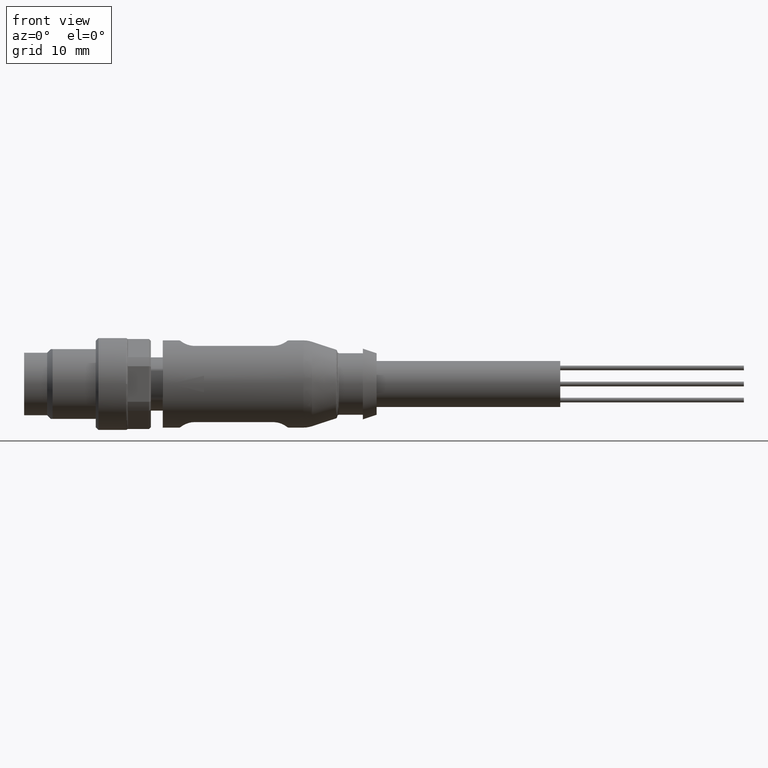
[diagram: clean part render]
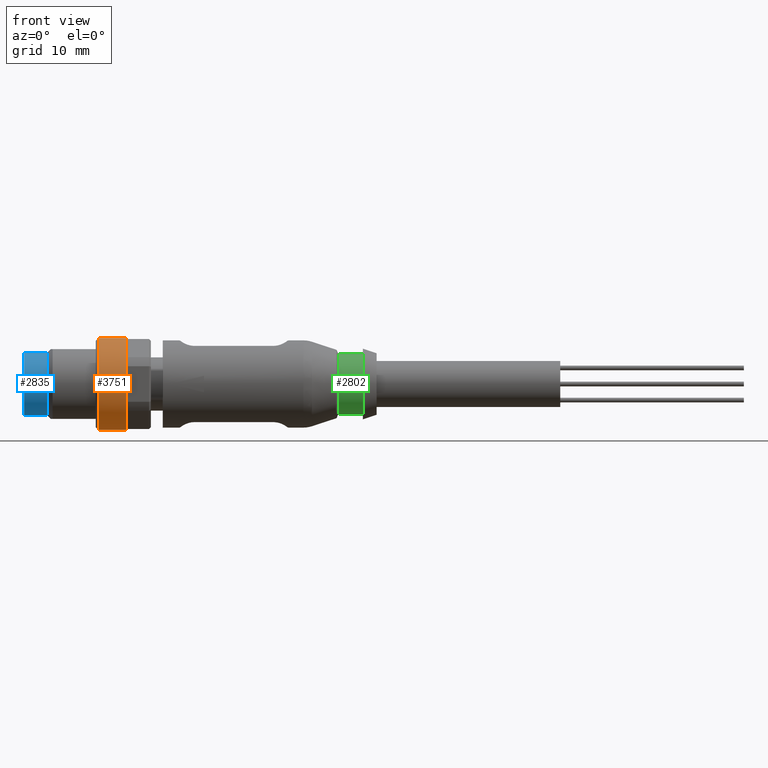
[diagram: same view with three faces highlighted in distinct colors, each labeled with its STEP entity id]
A machine part, front view with three faces highlighted in distinct colors.
Their STEP definitions:

[orange] entity #3751 — the highlighted cylindrical surface (partial cylindrical patch) has radius 5 mm, axis along (-1, 0, 0).
#155 = LINE ( 'NONE', #3574, #2706 ) ;
#286 = AXIS2_PLACEMENT_3D ( 'NONE', #2477, #474, #2804 ) ;
#296 = CARTESIAN_POINT ( 'NONE',  ( -17.05000000000000100, 8.879616000000001400E-016, 0.0000000000000000000 ) ) ;
#400 = CARTESIAN_POINT ( 'NONE',  ( -18.64999999999999900, 8.879616000000001400E-016, -4.999999999577175600 ) ) ;
#404 = VERTEX_POINT ( 'NONE', #3238 ) ;
#474 = DIRECTION ( 'NONE',  ( 1.000000000000000000, -0.0000000000000000000, -0.0000000000000000000 ) ) ;
#569 = DIRECTION ( 'NONE',  ( -1.000000000000000000, 0.0000000000000000000, 0.0000000000000000000 ) ) ;
#575 = CARTESIAN_POINT ( 'NONE',  ( -18.64999999999999900, 1.500284999521895500E-015, 4.999999999577175600 ) ) ;
#590 = CIRCLE ( 'NONE', #1803, 4.999999999999999100 ) ;
#807 = ORIENTED_EDGE ( 'NONE', *, *, #4150, .T. ) ;
#885 = DIRECTION ( 'NONE',  ( 1.000000000000000000, -0.0000000000000000000, -0.0000000000000000000 ) ) ;
#954 = VERTEX_POINT ( 'NONE', #2484 ) ;
#1006 = ORIENTED_EDGE ( 'NONE', *, *, #1381, .T. ) ;
#1037 = AXIS2_PLACEMENT_3D ( 'NONE', #296, #3293, #2298 ) ;
#1256 = DIRECTION ( 'NONE',  ( -1.000000000000000000, 0.0000000000000000000, 0.0000000000000000000 ) ) ;
#1322 = CIRCLE ( 'NONE', #3582, 5.000000000000000000 ) ;
#1355 = ORIENTED_EDGE ( 'NONE', *, *, #4008, .F. ) ;
#1381 = EDGE_CURVE ( 'NONE', #3661, #1816, #1322, .T. ) ;
#1532 = FACE_OUTER_BOUND ( 'NONE', #4113, .T. ) ;
#1763 = ORIENTED_EDGE ( 'NONE', *, *, #2436, .F. ) ;
#1803 = AXIS2_PLACEMENT_3D ( 'NONE', #3891, #1906, #4229 ) ;
#1816 = VERTEX_POINT ( 'NONE', #400 ) ;
#1906 = DIRECTION ( 'NONE',  ( 1.000000000000000000, -0.0000000000000000000, -0.0000000000000000000 ) ) ;
#2298 = DIRECTION ( 'NONE',  ( 0.0000000000000000000, 0.0000000000000000000, 1.000000000000000000 ) ) ;
#2436 = EDGE_CURVE ( 'NONE', #954, #1816, #155, .T. ) ;
#2477 = CARTESIAN_POINT ( 'NONE',  ( -15.64999999999999700, 8.879616000000001400E-016, 0.0000000000000000000 ) ) ;
#2484 = CARTESIAN_POINT ( 'NONE',  ( -15.64999999999999700, 1.500284999573676800E-015, -4.999999999999999100 ) ) ;
#2526 = VECTOR ( 'NONE', #569, 1000.000000000000000 ) ;
#2706 = VECTOR ( 'NONE', #1256, 1000.000000000000000 ) ;
#2804 = DIRECTION ( 'NONE',  ( 0.0000000000000000000, 1.000000000000000000, 0.0000000000000000000 ) ) ;
#2865 = CARTESIAN_POINT ( 'NONE',  ( -18.64999999999999900, 8.879616000000001400E-016, 0.0000000000000000000 ) ) ;
#2902 = CARTESIAN_POINT ( 'NONE',  ( -17.05000000000000100, 8.879616000000001400E-016, 5.000000000000000000 ) ) ;
#3202 = DIRECTION ( 'NONE',  ( 0.0000000000000000000, 0.0000000000000000000, 1.000000000000000000 ) ) ;
#3238 = CARTESIAN_POINT ( 'NONE',  ( -15.64999999999999700, -4.999999999999998200, -6.123233995736765300E-016 ) ) ;
#3293 = DIRECTION ( 'NONE',  ( -1.000000000000000000, 0.0000000000000000000, 0.0000000000000000000 ) ) ;
#3574 = CARTESIAN_POINT ( 'NONE',  ( -17.05000000000000100, 1.500284999573676800E-015, -5.000000000000000000 ) ) ;
#3582 = AXIS2_PLACEMENT_3D ( 'NONE', #2865, #885, #3202 ) ;
#3588 = EDGE_CURVE ( 'NONE', #404, #954, #590, .T. ) ;
#3661 = VERTEX_POINT ( 'NONE', #575 ) ;
#3677 = CARTESIAN_POINT ( 'NONE',  ( -15.64999999999999700, 8.879616000000001400E-016, 4.999999999999999100 ) ) ;
#3718 = CIRCLE ( 'NONE', #286, 4.999999999999999100 ) ;
#3751 = ADVANCED_FACE ( 'NONE', ( #1532 ), #4076, .T. ) ;
#3854 = VERTEX_POINT ( 'NONE', #3677 ) ;
#3891 = CARTESIAN_POINT ( 'NONE',  ( -15.64999999999999700, 8.879616000000001400E-016, 0.0000000000000000000 ) ) ;
#3971 = ORIENTED_EDGE ( 'NONE', *, *, #3588, .F. ) ;
#4008 = EDGE_CURVE ( 'NONE', #3854, #404, #3718, .T. ) ;
#4076 = CYLINDRICAL_SURFACE ( 'NONE', #1037, 5.000000000000000000 ) ;
#4082 = LINE ( 'NONE', #2902, #2526 ) ;
#4113 = EDGE_LOOP ( 'NONE', ( #1763, #3971, #1355, #807, #1006 ) ) ;
#4150 = EDGE_CURVE ( 'NONE', #3854, #3661, #4082, .T. ) ;
#4229 = DIRECTION ( 'NONE',  ( 0.0000000000000000000, 1.000000000000000000, 0.0000000000000000000 ) ) ;

[blue] entity #2835 — the highlighted cylindrical surface (edge-blend (fillet) strip) has radius 3.4 mm, axis along (-1, 0, 0).
#114 = FACE_OUTER_BOUND ( 'NONE', #2287, .T. ) ;
#115 = CARTESIAN_POINT ( 'NONE',  ( -26.75000000000000000, 1.304341511710100300E-015, -3.399999999999999900 ) ) ;
#145 = VERTEX_POINT ( 'NONE', #115 ) ;
#178 = DIRECTION ( 'NONE',  ( 1.000000000000000000, 0.0000000000000000000, 0.0000000000000000000 ) ) ;
#227 = AXIS2_PLACEMENT_3D ( 'NONE', #2190, #178, #2517 ) ;
#278 = VECTOR ( 'NONE', #1226, 1000.000000000000000 ) ;
#344 = EDGE_CURVE ( 'NONE', #3056, #145, #2272, .T. ) ;
#356 = EDGE_CURVE ( 'NONE', #1186, #145, #3719, .T. ) ;
#459 = DIRECTION ( 'NONE',  ( -1.000000000000000000, 0.0000000000000000000, 0.0000000000000000000 ) ) ;
#641 = CARTESIAN_POINT ( 'NONE',  ( -26.75000000000000000, 8.879616000000001400E-016, 3.399999999999999900 ) ) ;
#910 = CARTESIAN_POINT ( 'NONE',  ( -26.75000000000000000, 8.879616000000001400E-016, 0.0000000000000000000 ) ) ;
#1055 = VERTEX_POINT ( 'NONE', #1586 ) ;
#1127 = DIRECTION ( 'NONE',  ( 0.0000000000000000000, 0.0000000000000000000, 1.000000000000000000 ) ) ;
#1186 = VERTEX_POINT ( 'NONE', #641 ) ;
#1226 = DIRECTION ( 'NONE',  ( -1.000000000000000000, 0.0000000000000000000, 0.0000000000000000000 ) ) ;
#1241 = DIRECTION ( 'NONE',  ( 0.0000000000000000000, 0.0000000000000000000, 1.000000000000000000 ) ) ;
#1586 = CARTESIAN_POINT ( 'NONE',  ( -24.25000000027921500, 8.879616000000001400E-016, 3.400000000283398500 ) ) ;
#1591 = CIRCLE ( 'NONE', #227, 3.400000000283398500 ) ;
#1615 = EDGE_CURVE ( 'NONE', #1055, #1186, #2155, .T. ) ;
#1866 = ORIENTED_EDGE ( 'NONE', *, *, #344, .F. ) ;
#1904 = CARTESIAN_POINT ( 'NONE',  ( -25.50000000000000400, 1.304341511710100300E-015, -3.399999999999999900 ) ) ;
#1998 = ORIENTED_EDGE ( 'NONE', *, *, #1615, .T. ) ;
#2155 = LINE ( 'NONE', #3340, #3818 ) ;
#2190 = CARTESIAN_POINT ( 'NONE',  ( -24.25000000027921500, 8.879616000000001400E-016, 0.0000000000000000000 ) ) ;
#2272 = LINE ( 'NONE', #1904, #278 ) ;
#2287 = EDGE_LOOP ( 'NONE', ( #1866, #2814, #1998, #3996 ) ) ;
#2465 = CYLINDRICAL_SURFACE ( 'NONE', #2699, 3.399999999999999900 ) ;
#2517 = DIRECTION ( 'NONE',  ( 0.0000000000000000000, 0.0000000000000000000, 1.000000000000000000 ) ) ;
#2699 = AXIS2_PLACEMENT_3D ( 'NONE', #2794, #459, #1127 ) ;
#2794 = CARTESIAN_POINT ( 'NONE',  ( -25.50000000000000400, 8.879616000000001400E-016, 0.0000000000000000000 ) ) ;
#2814 = ORIENTED_EDGE ( 'NONE', *, *, #3492, .F. ) ;
#2835 = ADVANCED_FACE ( 'NONE', ( #114 ), #2465, .T. ) ;
#3056 = VERTEX_POINT ( 'NONE', #3404 ) ;
#3224 = DIRECTION ( 'NONE',  ( 1.000000000000000000, -0.0000000000000000000, -0.0000000000000000000 ) ) ;
#3340 = CARTESIAN_POINT ( 'NONE',  ( -25.50000000000000400, 8.879616000000001400E-016, 3.399999999999999900 ) ) ;
#3384 = AXIS2_PLACEMENT_3D ( 'NONE', #910, #3224, #1241 ) ;
#3404 = CARTESIAN_POINT ( 'NONE',  ( -24.25000000027921500, 1.304341511744806800E-015, -3.400000000283399000 ) ) ;
#3492 = EDGE_CURVE ( 'NONE', #1055, #3056, #1591, .T. ) ;
#3683 = DIRECTION ( 'NONE',  ( -1.000000000000000000, 0.0000000000000000000, 0.0000000000000000000 ) ) ;
#3719 = CIRCLE ( 'NONE', #3384, 3.399999999999999900 ) ;
#3818 = VECTOR ( 'NONE', #3683, 1000.000000000000000 ) ;
#3996 = ORIENTED_EDGE ( 'NONE', *, *, #356, .T. ) ;

[green] entity #2802 — the highlighted cylindrical surface (edge-blend (fillet) strip) has radius 3.35 mm, axis along (1, 0, 0).
#191 = AXIS2_PLACEMENT_3D ( 'NONE', #3174, #1192, #3520 ) ;
#201 = VERTEX_POINT ( 'NONE', #3469 ) ;
#311 = ORIENTED_EDGE ( 'NONE', *, *, #3354, .F. ) ;
#678 = VERTEX_POINT ( 'NONE', #3302 ) ;
#800 = CYLINDRICAL_SURFACE ( 'NONE', #2276, 3.350000000000000100 ) ;
#979 = EDGE_CURVE ( 'NONE', #2499, #201, #1057, .T. ) ;
#1026 = VERTEX_POINT ( 'NONE', #2233 ) ;
#1057 = LINE ( 'NONE', #1503, #3618 ) ;
#1115 = DIRECTION ( 'NONE',  ( 0.0000000000000000000, 0.0000000000000000000, -1.000000000000000000 ) ) ;
#1146 = ORIENTED_EDGE ( 'NONE', *, *, #2531, .T. ) ;
#1192 = DIRECTION ( 'NONE',  ( -1.000000000000000000, -0.0000000000000000000, -0.0000000000000000000 ) ) ;
#1287 = CARTESIAN_POINT ( 'NONE',  ( 7.550000000000003400, 8.879616000000001400E-016, -3.350000000000001400 ) ) ;
#1307 = DIRECTION ( 'NONE',  ( 1.000000000000000000, 0.0000000000000000000, 0.0000000000000000000 ) ) ;
#1425 = DIRECTION ( 'NONE',  ( 1.000000000000000000, 0.0000000000000000000, 0.0000000000000000000 ) ) ;
#1450 = CARTESIAN_POINT ( 'NONE',  ( 8.850000000000001400, 8.879616000000001400E-016, 0.0000000000000000000 ) ) ;
#1503 = CARTESIAN_POINT ( 'NONE',  ( 8.850000000000001400, 8.879616000000001400E-016, -3.350000000000000100 ) ) ;
#1943 = EDGE_LOOP ( 'NONE', ( #311, #1146, #4040, #4242 ) ) ;
#2162 = EDGE_CURVE ( 'NONE', #201, #678, #4243, .T. ) ;
#2233 = CARTESIAN_POINT ( 'NONE',  ( 7.550000000000003400, 1.298218277714363600E-015, 3.350000000000001400 ) ) ;
#2276 = AXIS2_PLACEMENT_3D ( 'NONE', #1450, #2447, #1115 ) ;
#2346 = AXIS2_PLACEMENT_3D ( 'NONE', #3295, #1307, #3640 ) ;
#2447 = DIRECTION ( 'NONE',  ( 1.000000000000000000, 0.0000000000000000000, 0.0000000000000000000 ) ) ;
#2499 = VERTEX_POINT ( 'NONE', #1287 ) ;
#2508 = CIRCLE ( 'NONE', #2346, 3.350000000000001900 ) ;
#2531 = EDGE_CURVE ( 'NONE', #1026, #2499, #2508, .T. ) ;
#2542 = DIRECTION ( 'NONE',  ( 1.000000000000000000, 0.0000000000000000000, 0.0000000000000000000 ) ) ;
#2802 = ADVANCED_FACE ( 'NONE', ( #3450 ), #800, .T. ) ;
#2882 = LINE ( 'NONE', #3738, #3766 ) ;
#3174 = CARTESIAN_POINT ( 'NONE',  ( 10.15000000000000200, 8.879616000000001400E-016, 0.0000000000000000000 ) ) ;
#3295 = CARTESIAN_POINT ( 'NONE',  ( 7.550000000000003400, 8.879616000000001400E-016, 0.0000000000000000000 ) ) ;
#3302 = CARTESIAN_POINT ( 'NONE',  ( 10.15000000000000200, 1.298218277714363400E-015, 3.350000000000000100 ) ) ;
#3354 = EDGE_CURVE ( 'NONE', #1026, #678, #2882, .T. ) ;
#3450 = FACE_OUTER_BOUND ( 'NONE', #1943, .T. ) ;
#3469 = CARTESIAN_POINT ( 'NONE',  ( 10.15000000000000200, 8.879616000000001400E-016, -3.350000000000000100 ) ) ;
#3520 = DIRECTION ( 'NONE',  ( 0.0000000000000000000, 0.0000000000000000000, -1.000000000000000000 ) ) ;
#3618 = VECTOR ( 'NONE', #2542, 1000.000000000000000 ) ;
#3640 = DIRECTION ( 'NONE',  ( 0.0000000000000000000, 0.0000000000000000000, 1.000000000000000000 ) ) ;
#3738 = CARTESIAN_POINT ( 'NONE',  ( 8.850000000000001400, 1.298218277714363400E-015, 3.350000000000000100 ) ) ;
#3766 = VECTOR ( 'NONE', #1425, 1000.000000000000000 ) ;
#4040 = ORIENTED_EDGE ( 'NONE', *, *, #979, .T. ) ;
#4242 = ORIENTED_EDGE ( 'NONE', *, *, #2162, .T. ) ;
#4243 = CIRCLE ( 'NONE', #191, 3.350000000000000100 ) ;